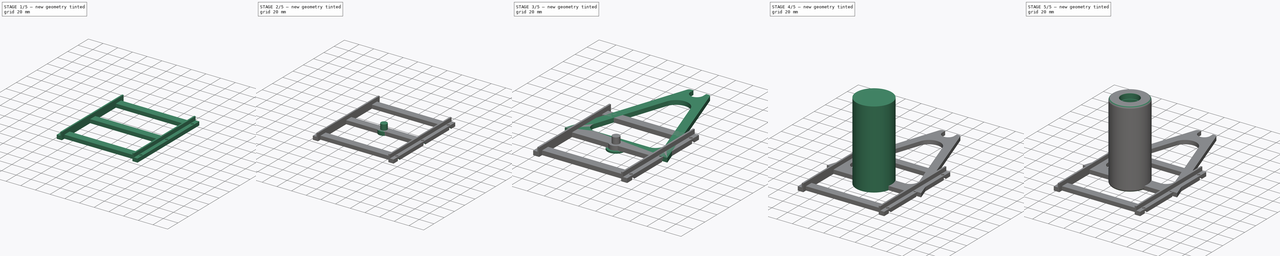
[diagram: build sequence overview — one tinted view per stage of 5, left to right]
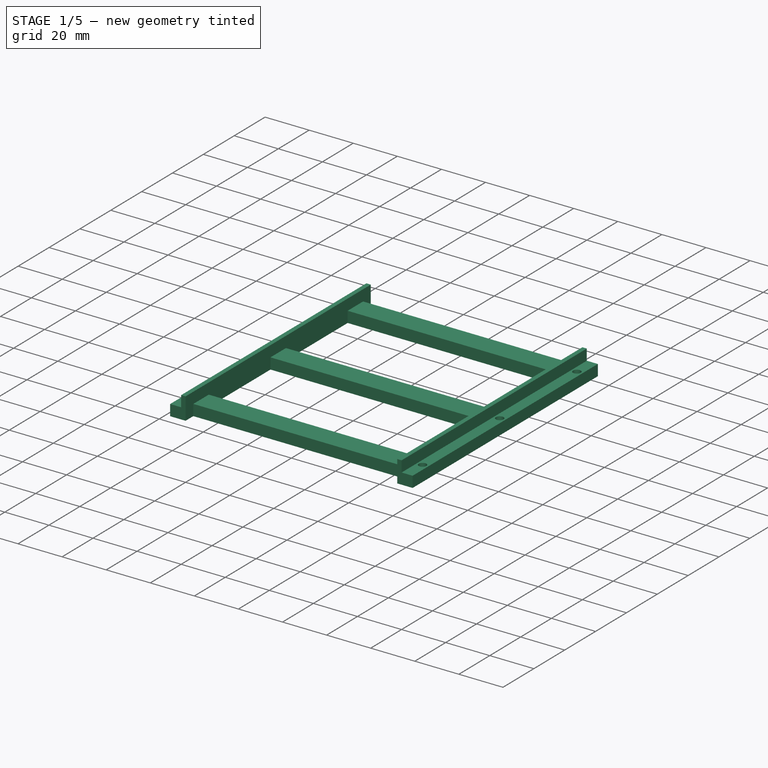
[diagram: stage 1 of 5 — iso view after this stage's code; geometry added in this stage tinted green]
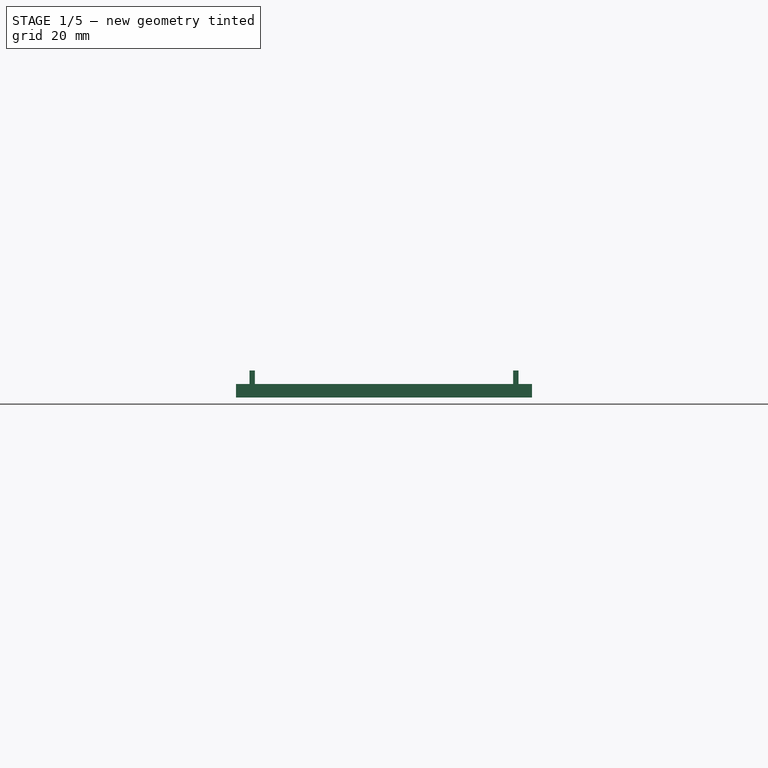
[diagram: stage 1 of 5 — front view after this stage's code; geometry added in this stage tinted green]
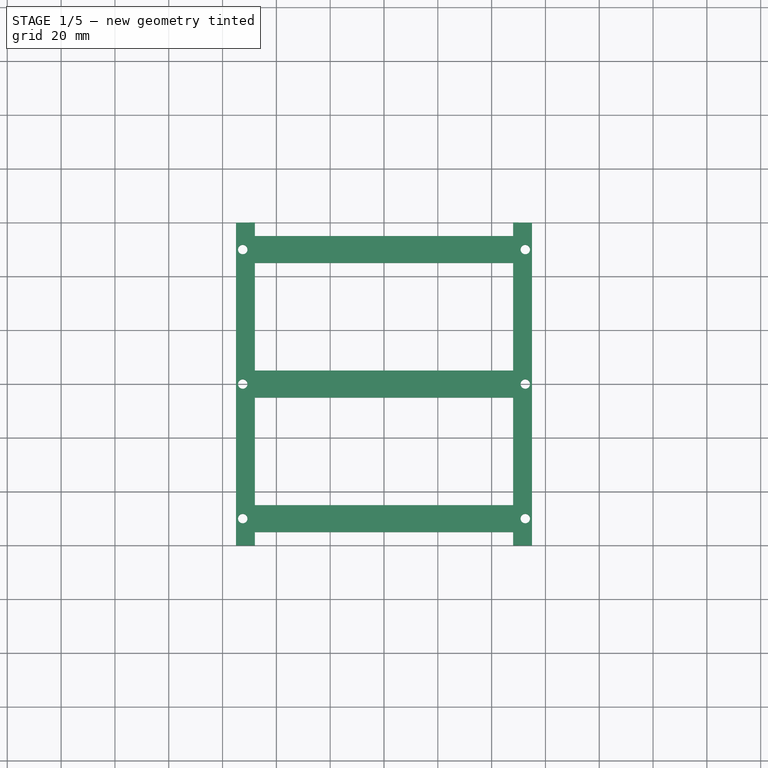
[diagram: stage 1 of 5 — top view after this stage's code; geometry added in this stage tinted green]
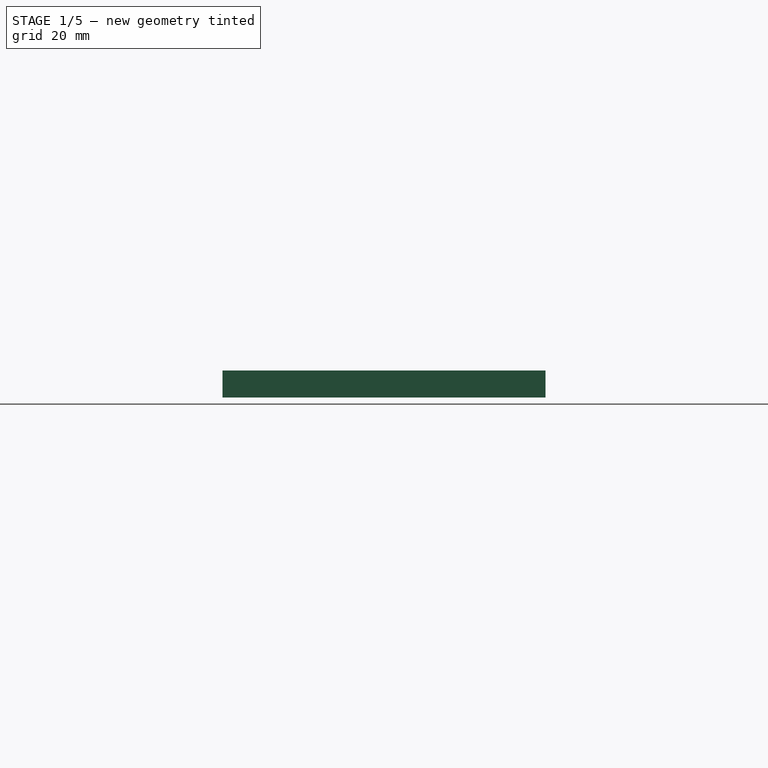
[diagram: stage 1 of 5 — right view after this stage's code; geometry added in this stage tinted green]
FCSTD DOCUMENT  (FreeCAD 0.18R4 (GitTag))
Label: filament-holder
License: All rights reserved
LicenseURL: http://en.wikipedia.org/wiki/All_rights_reserved
objects: Sketcher::SketchObject×15, PartDesign::Pocket×8, PartDesign::Pad×7, PartDesign::Body×4, PartDesign::Fillet×3
note: 52 computed .brp shape members not serialized (recipe doc carries the construction recipe); baked Part::Feature solids carry a one-line shape summary decoded from their .brp

FEATURE [Sketcher::SketchObject] Sketch008
  MapMode = 5
  Support = -> [XY_Plane003]
  sketch-geometry (4):
    g0: LineSegment StartX=-55 StartY=60 StartZ=0 EndX=55 EndY=60 EndZ=0
    g1: LineSegment StartX=55 StartY=60 StartZ=0 EndX=55 EndY=-60 EndZ=0
    g2: LineSegment StartX=55 StartY=-60 StartZ=0 EndX=-55 EndY=-60 EndZ=0
    g3: LineSegment StartX=-55 StartY=-60 StartZ=0 EndX=-55 EndY=60 EndZ=0
  constraints (10):
    c: Coincident(g0,g1)
    c: Coincident(g1,g2)
    c: Coincident(g2,g3)
    c: Coincident(g3,g0)
    c: Horizontal(g2)
    c: Vertical(g1)
    c: Symmetric(g0,g2,g-1)
    c: Symmetric(g0,g0,g-2)
    c: DistanceY(g3,g3) = 120
    c: DistanceX(g0,g0) = 110
FEATURE [PartDesign::Pad] Pad004
  Length = 5
  Length2 = 100
  Profile = -> Sketch008
  Type = 0
FEATURE [PartDesign::Body] Body001
  Group = -> [Sketch002,Pad001,Sketch003,Pad002,Sketch011,Pad006]
  Origin = -> Origin001
  Tip = -> Pad006
FEATURE [PartDesign::Pocket] Pocket006
  BaseFeature = -> Pad004
  Length = 5
  Length2 = 100
  Profile = -> Sketch009
  Type = 1
FEATURE [Sketcher::SketchObject] Sketch012
  ExternalGeometry = -> [Pocket006]
  MapMode = 5
  Placement = pos=(0,0,5) rot=(0,0,1;0rad)
  Support = -> [Pocket006]
  sketch-geometry (16):
    g0: LineSegment StartX=-48 StartY=60 StartZ=0 EndX=48 EndY=60 EndZ=0
    g1: LineSegment StartX=48 StartY=60 StartZ=0 EndX=48 EndY=55 EndZ=0
    g2: LineSegment StartX=48 StartY=55 StartZ=0 EndX=-48 EndY=55 EndZ=0
    g3: LineSegment StartX=-48 StartY=55 StartZ=0 EndX=-48 EndY=60 EndZ=0
    g4: LineSegment StartX=-48 StartY=-55 StartZ=0 EndX=48 EndY=-55 EndZ=0
    g5: LineSegment StartX=48 StartY=-55 StartZ=0 EndX=48 EndY=-60 EndZ=0
    g6: LineSegment StartX=48 StartY=-60 StartZ=0 EndX=-48 EndY=-60 EndZ=0
    g7: LineSegment StartX=-48 StartY=-60 StartZ=0 EndX=-48 EndY=-55 EndZ=0
    g8: LineSegment StartX=-48 StartY=45 StartZ=0 EndX=48 EndY=45 EndZ=0
    g9: LineSegment StartX=48 StartY=45 StartZ=0 EndX=48 EndY=5 EndZ=0
    g10: LineSegment StartX=48 StartY=5 StartZ=0 EndX=-48 EndY=5 EndZ=0
    g11: LineSegment StartX=-48 StartY=5 StartZ=0 EndX=-48 EndY=45 EndZ=0
    g12: LineSegment StartX=-48 StartY=-5 StartZ=0 EndX=48 EndY=-5 EndZ=0
    g13: LineSegment StartX=48 StartY=-5 StartZ=0 EndX=48 EndY=-45 EndZ=0
    g14: LineSegment StartX=48 StartY=-45 StartZ=0 EndX=-48 EndY=-45 EndZ=0
    g15: LineSegment StartX=-48 StartY=-45 StartZ=0 EndX=-48 EndY=-5 EndZ=0
  constraints (47):
    c: Coincident(g0,g1)
    c: Coincident(g1,g2)
    c: Coincident(g2,g3)
    c: Coincident(g3,g0)
    c: Horizontal(g0)
    c: Horizontal(g2)
    c: Vertical(g1)
    c: Vertical(g3)
    c: PointOnObject(g0,g-4)
    c: DistanceX(g-4,g0) = 7
    c: DistanceX(g0,g-5) = 7
    c: DistanceY(g1,g0) = 5
    c: Coincident(g4,g5)
    c: Coincident(g5,g6)
    c: Coincident(g6,g7)
    c: Coincident(g7,g4)
    c: Horizontal(g4)
    c: Horizontal(g6)
    c: Vertical(g5)
    c: Vertical(g7)
    c: PointOnObject(g6,g-6)
    c: DistanceX(g-6,g6) = 7
    c: DistanceX(g5,g-6) = 7
    c: DistanceY(g5,g4) = 5
    c: Coincident(g8,g9)
    c: Coincident(g9,g10)
    c: Coincident(g10,g11)
    c: Coincident(g11,g8)
    c: Horizontal(g8)
    c: Horizontal(g10)
    c: Vertical(g9)
    c: Vertical(g11)
    c: Coincident(g12,g13)
    c: Coincident(g13,g14)
    c: Coincident(g14,g15)
    c: Coincident(g15,g12)
    c: Horizontal(g12)
    c: Horizontal(g14)
    c: Vertical(g13)
    c: Vertical(g15)
    c: DistanceY(g4,g14) = 10
    c: DistanceX(g-6,g12) = 7
    c: DistanceX(g12,g-6) = 7
    c: Symmetric(g10,g12,g-1)
    c: DistanceY(g12,g10) = 10
    c: DistanceX(g8,g-5) = 7
    c: DistanceY(g8,g2) = 10
FEATURE [PartDesign::Pocket] Pocket007
  BaseFeature = -> Pocket006
  Length = 5
  Length2 = 100
  Profile = -> Sketch012
  Type = 1
FEATURE [Sketcher::SketchObject] Sketch014
  ExternalGeometry = -> [Pocket007]
  MapMode = 5
  Placement = pos=(0,0,5) rot=(0,0,1;0rad)
  Support = -> [Pocket007]
  sketch-geometry (8):
    g0: LineSegment StartX=-48 StartY=60 StartZ=0 EndX=-50 EndY=60 EndZ=0
    g1: LineSegment StartX=-50 StartY=60 StartZ=0 EndX=-50 EndY=-60 EndZ=0
    g2: LineSegment StartX=-50 StartY=-60 StartZ=0 EndX=-48 EndY=-60 EndZ=0
    g3: LineSegment StartX=-48 StartY=-60 StartZ=0 EndX=-48 EndY=60 EndZ=0
    g4: LineSegment StartX=48 StartY=60 StartZ=0 EndX=50 EndY=60 EndZ=0
    g5: LineSegment StartX=50 StartY=60 StartZ=0 EndX=50 EndY=-60 EndZ=0
    g6: LineSegment StartX=50 StartY=-60 StartZ=0 EndX=48 EndY=-60 EndZ=0
    g7: LineSegment StartX=48 StartY=-60 StartZ=0 EndX=48 EndY=60 EndZ=0
  constraints (20):
    c: Coincident(g0,g1)
    c: Coincident(g1,g2)
    c: Coincident(g2,g3)
    c: Coincident(g3,g0)
    c: Horizontal(g0)
    c: Horizontal(g2)
    c: Vertical(g1)
    c: Coincident(g4,g5)
    c: Coincident(g5,g6)
    c: Coincident(g6,g7)
    c: Coincident(g7,g4)
    c: Horizontal(g4)
    c: Horizontal(g6)
    c: Vertical(g5)
    c: Coincident(g4,g-3)
    c: Coincident(g6,g-6)
    c: Coincident(g0,g-4)
    c: Coincident(g2,g-5)
    c: DistanceX(g4,g-3) = 5
    c: DistanceX(g-4,g0) = 5
FEATURE [PartDesign::Pad] Pad007
  BaseFeature = -> Pocket007
  Length = 5
  Length2 = 100
  Profile = -> Sketch014
  Type = 0
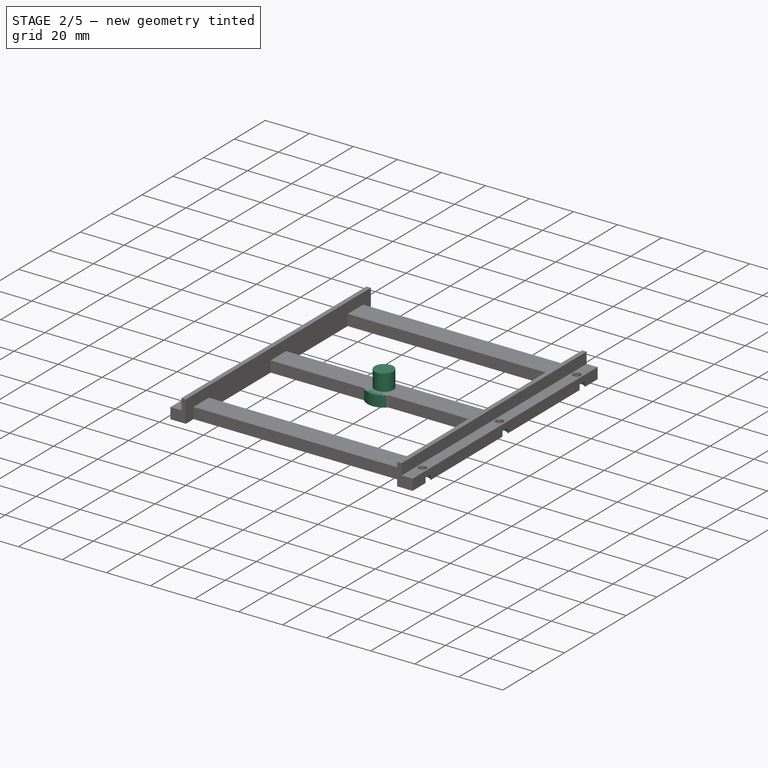
[diagram: stage 2 of 5 — iso view after this stage's code; geometry added in this stage tinted green]
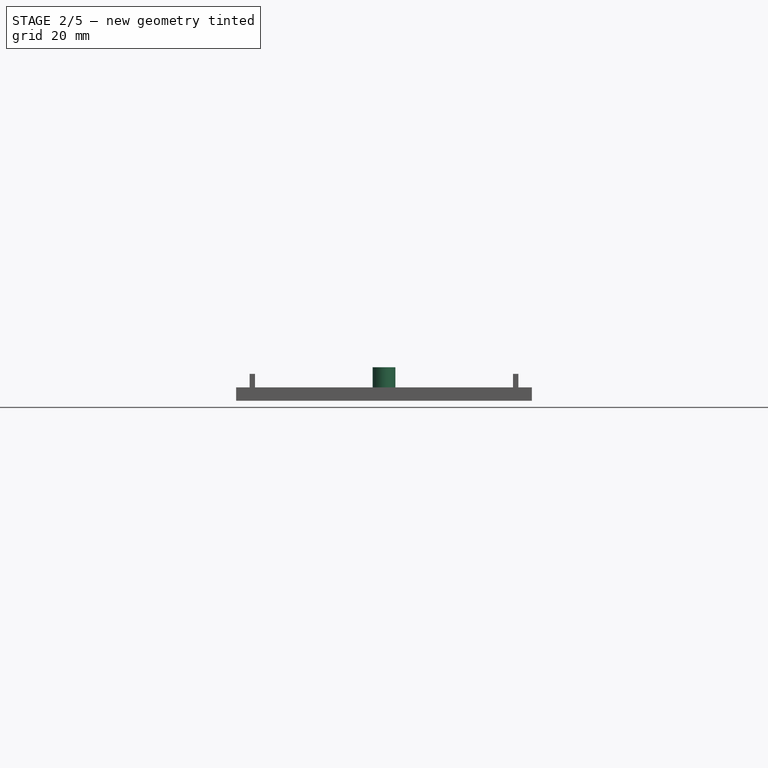
[diagram: stage 2 of 5 — front view after this stage's code; geometry added in this stage tinted green]
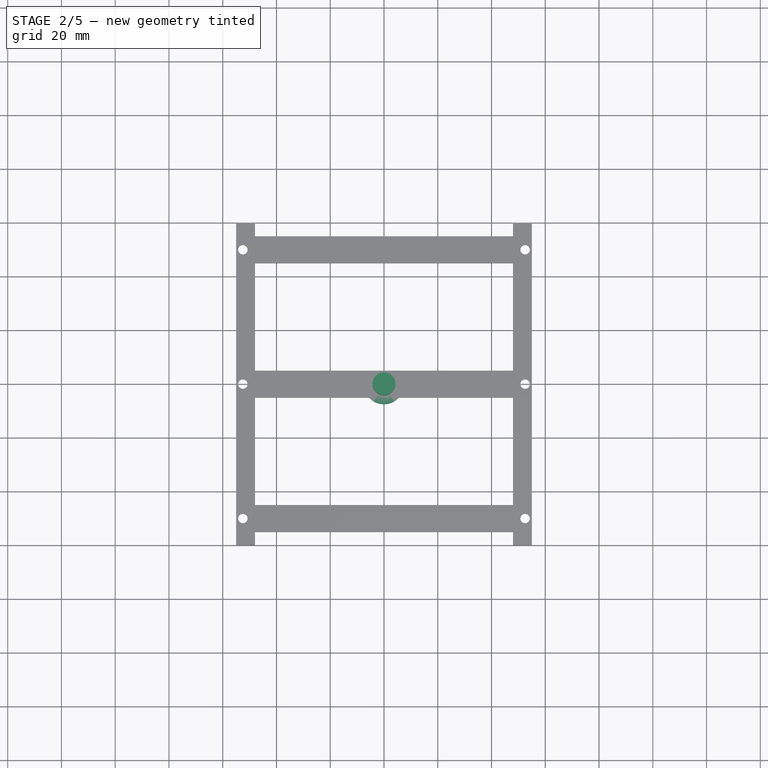
[diagram: stage 2 of 5 — top view after this stage's code; geometry added in this stage tinted green]
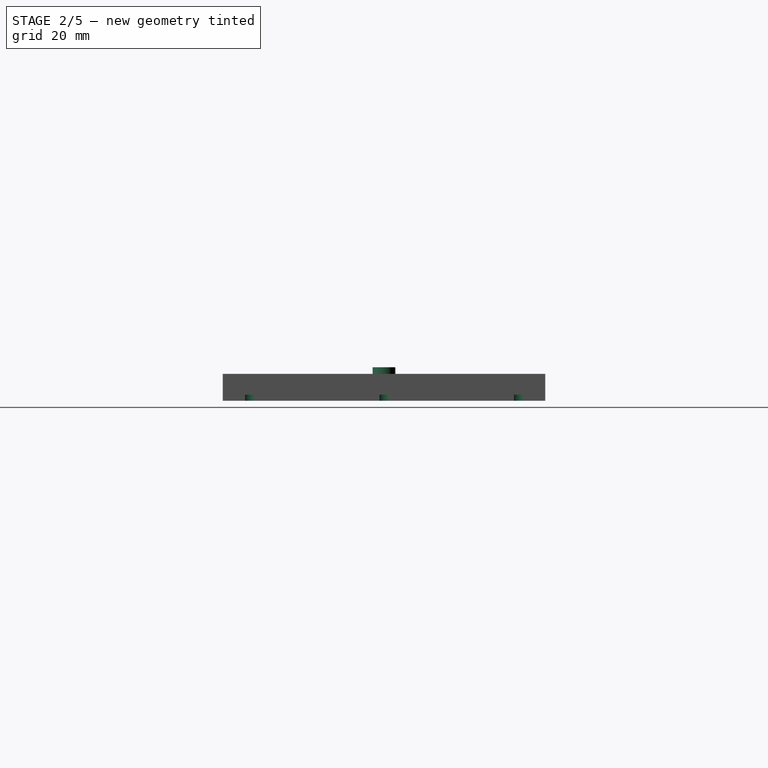
[diagram: stage 2 of 5 — right view after this stage's code; geometry added in this stage tinted green]
FEATURE [Sketcher::SketchObject] Sketch002
  MapMode = 5
  Support = -> [XY_Plane001]
  sketch-geometry (4):
    g0: ArcOfCircle CenterX=0 CenterY=0 CenterZ=0 NormalX=0 NormalY=0 NormalZ=1 AngleXU=0 Radius=7.45 StartAngle=3.14159 EndAngle=6.28319
    g1: LineSegment StartX=-7.45 StartY=9e-16 StartZ=0 EndX=-7.45 EndY=5 EndZ=0
    g2: LineSegment StartX=-7.45 StartY=5 StartZ=0 EndX=7.45 EndY=5 EndZ=0
    g3: LineSegment StartX=7.45 StartY=5 StartZ=0 EndX=7.45 EndY=0 EndZ=0
  constraints (12):
    c: Coincident(g1,g2)
    c: Coincident(g2,g3)
    c: Coincident(g3,g0)
    c: Coincident(g1,g0)
    c: Vertical(g1)
    c: Vertical(g3)
    c: Horizontal(g2)
    c: Coincident(g0,g-1)
    c: PointOnObject(g0,g-1)
    c: PointOnObject(g0,g-1)
    c: Diameter(g0) = 14.9
    c: DistanceY(g3,g3) = 5
FEATURE [PartDesign::Pad] Pad001
  Length = 5
  Length2 = 100
  Profile = -> Sketch002
  Type = 0
FEATURE [Sketcher::SketchObject] Sketch003
  MapMode = 5
  Placement = pos=(0,0,5) rot=(0,0,1;0rad)
  Support = -> [Pad001]
  sketch-geometry (1):
    g0: Circle CenterX=0 CenterY=0 CenterZ=0 NormalX=0 NormalY=0 NormalZ=1 AngleXU=0 Radius=4.25
  constraints (2):
    c: Diameter(g0) = 8.5
    c: Coincident(g0,g-1)
FEATURE [PartDesign::Pad] Pad002
  BaseFeature = -> Pad001
  Length = 7.5
  Length2 = 100
  Profile = -> Sketch003
  Type = 0
FEATURE [Sketcher::SketchObject] Sketch015
  ExternalGeometry = -> [Pad007]
  MapMode = 5
  Placement = pos=(0,0,0) rot=(1,0,0;3.14159rad)
  Support = -> [Pad007]
  sketch-geometry (6):
    g0: Circle CenterX=-52.5 CenterY=50 CenterZ=0 NormalX=0 NormalY=0 NormalZ=1 AngleXU=0 Radius=3
    g1: Circle CenterX=-52.5 CenterY=0 CenterZ=0 NormalX=0 NormalY=0 NormalZ=1 AngleXU=0 Radius=3
    g2: Circle CenterX=-52.5 CenterY=-50 CenterZ=0 NormalX=0 NormalY=0 NormalZ=1 AngleXU=0 Radius=3
    g3: Circle CenterX=52.5 CenterY=-50 CenterZ=0 NormalX=0 NormalY=0 NormalZ=1 AngleXU=0 Radius=3
    g4: Circle CenterX=52.5 CenterY=0 CenterZ=0 NormalX=0 NormalY=0 NormalZ=1 AngleXU=0 Radius=3
    g5: Circle CenterX=52.5 CenterY=50 CenterZ=0 NormalX=0 NormalY=0 NormalZ=1 AngleXU=0 Radius=3
  constraints (12):
    c: Coincident(g-3,g0)
    c: Coincident(g1,g-4)
    c: Coincident(g2,g-5)
    c: Coincident(g-6,g3)
    c: Coincident(g-7,g4)
    c: Coincident(g-8,g5)
    c: Diameter(g0) = 6
    c: Diameter(g1) = 6
    c: Diameter(g2) = 6
    c: Diameter(g5) = 6
    c: Diameter(g4) = 6
    c: Diameter(g3) = 6
FEATURE [PartDesign::Pocket] Pocket008
  BaseFeature = -> Pad007
  Length = 2.3
  Length2 = 100
  Profile = -> Sketch015
  Type = 0
FEATURE [PartDesign::Body] Body003
  Group = -> [Sketch008,Pad004,Sketch009,Pocket006,Sketch012,Pocket007,Sketch014,Pad007,Sketch015,Pocket008]
  Origin = -> Origin003
  Tip = -> Pocket008
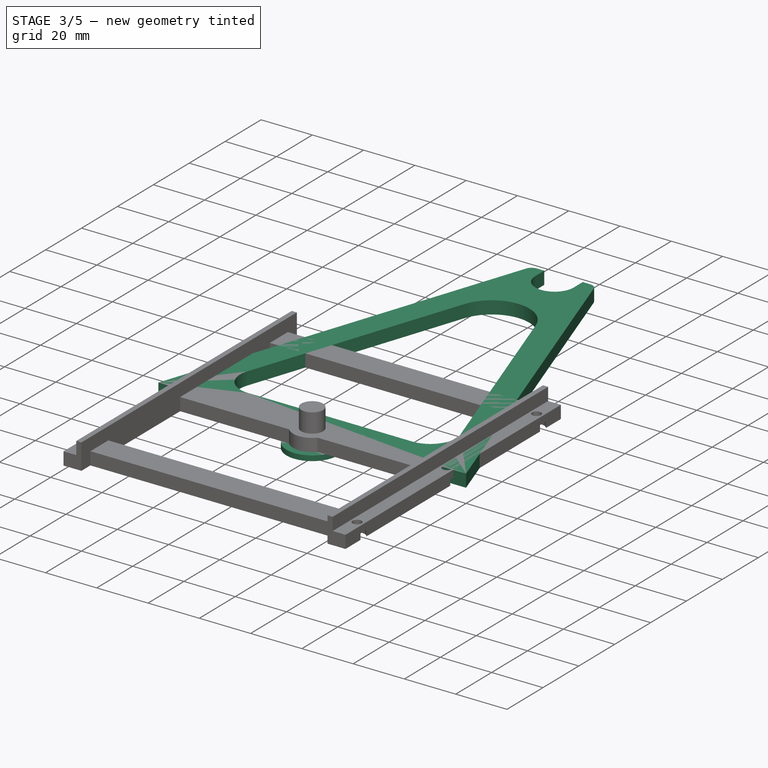
[diagram: stage 3 of 5 — iso view after this stage's code; geometry added in this stage tinted green]
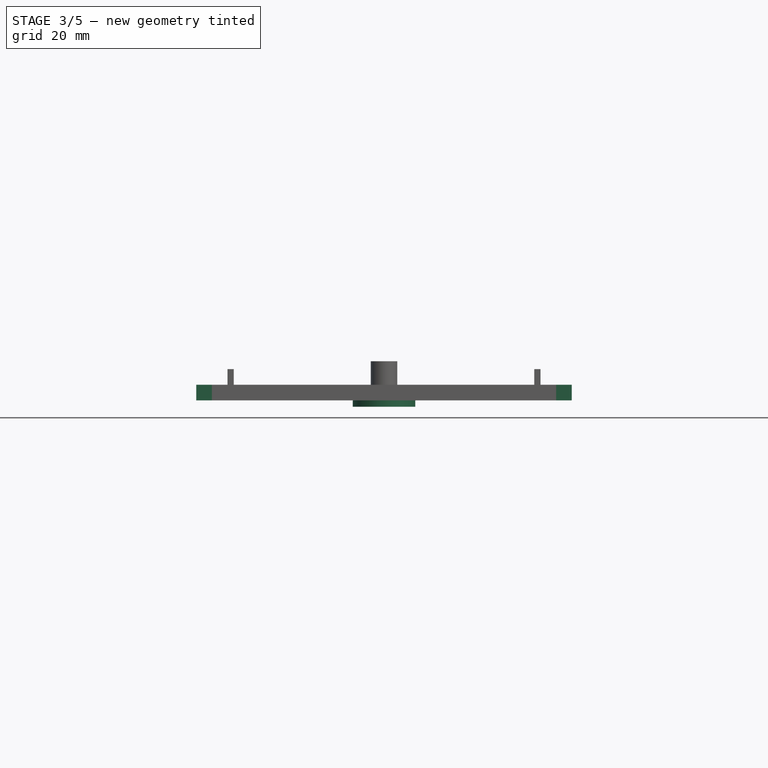
[diagram: stage 3 of 5 — front view after this stage's code; geometry added in this stage tinted green]
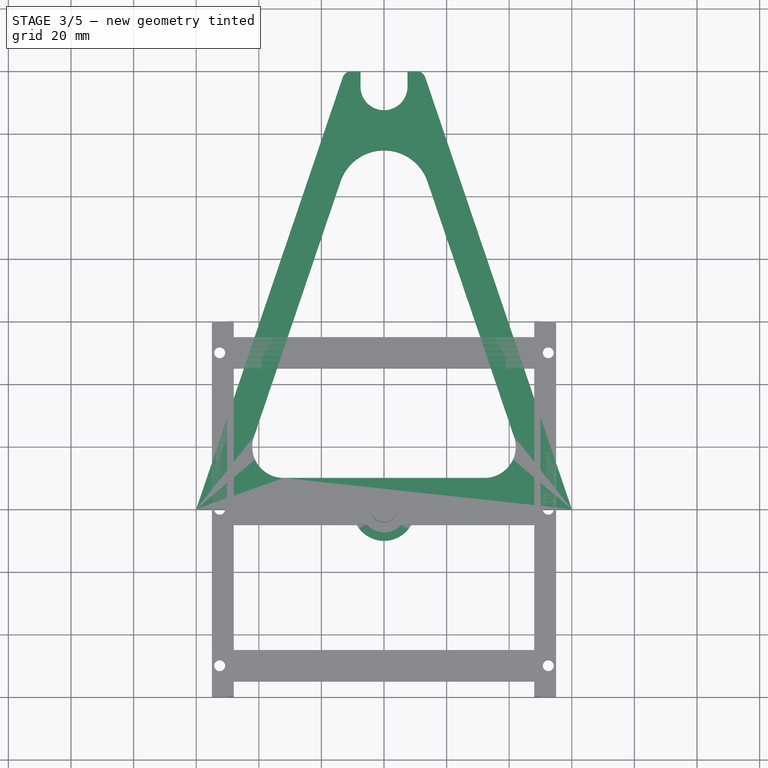
[diagram: stage 3 of 5 — top view after this stage's code; geometry added in this stage tinted green]
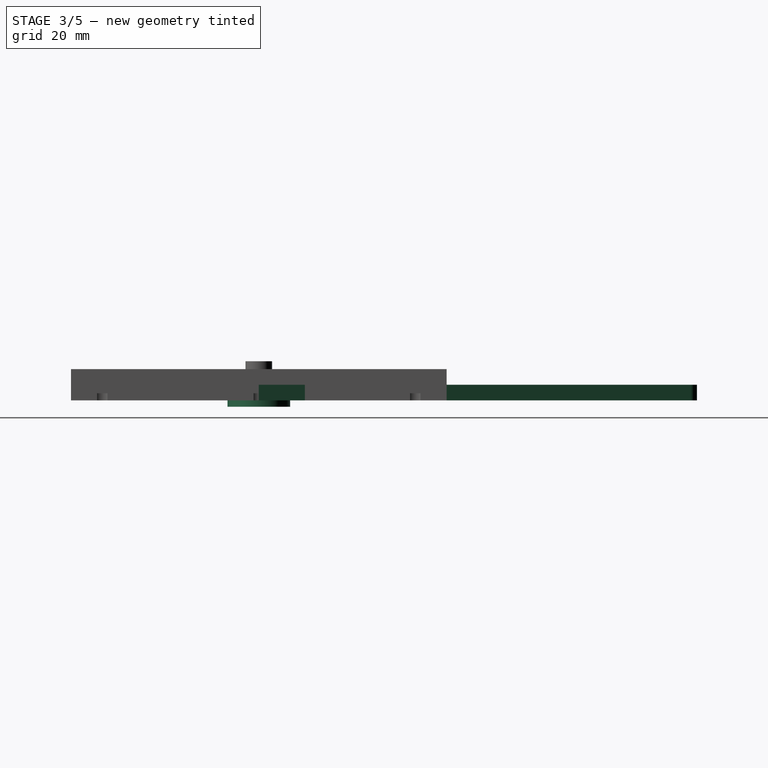
[diagram: stage 3 of 5 — right view after this stage's code; geometry added in this stage tinted green]
FEATURE [Sketcher::SketchObject] Sketch
  MapMode = 5
  Support = -> [XY_Plane]
  sketch-geometry (8):
    g0: ArcOfCircle CenterX=0 CenterY=135 CenterZ=0 NormalX=0 NormalY=0 NormalZ=1 AngleXU=0 Radius=7.5 StartAngle=3.14159 EndAngle=6.28319
    g1: LineSegment StartX=-7.5 StartY=135 StartZ=0 EndX=-7.5 EndY=140 EndZ=0
    g2: LineSegment StartX=-7.5 StartY=140 StartZ=0 EndX=-12.5 EndY=140 EndZ=0
    g3: LineSegment StartX=-12.5 StartY=140 StartZ=0 EndX=-60 EndY=0 EndZ=0
    g4: LineSegment StartX=-60 StartY=0 StartZ=0 EndX=60 EndY=0 EndZ=0
    g5: LineSegment StartX=60 StartY=0 StartZ=0 EndX=12.5 EndY=140 EndZ=0
    g6: LineSegment StartX=12.5 StartY=140 StartZ=0 EndX=7.5 EndY=140 EndZ=0
    g7: LineSegment StartX=7.5 StartY=140 StartZ=0 EndX=7.5 EndY=135 EndZ=0
  constraints (23):
    c: Coincident(g1,g2)
    c: Coincident(g2,g3)
    c: Coincident(g3,g4)
    c: Coincident(g4,g5)
    c: Coincident(g5,g6)
    c: Coincident(g6,g7)
    c: Coincident(g1,g0)
    c: Coincident(g0,g7)
    c: Symmetric(g3,g4,g-1)
    c: Horizontal(g4)
    c: Vertical(g1)
    c: Vertical(g7)
    c: DistanceX(g4,g4) = 120
    c: PointOnObject(g0,g-2)
    c: Horizontal(g0,g0)
    c: Horizontal(g0,g0)
    c: Horizontal(g6)
    c: Horizontal(g2)
    c: DistanceY(g3,g3) = 140
    c: Symmetric(g2,g5,g-2)
    c: DistanceX(g2,g2) = 5
    c: DistanceY(g7,g7) = 5
    c: Diameter(g0) = 15
FEATURE [PartDesign::Pad] Pad
  Length = 5
  Length2 = 100
  Profile = -> Sketch
  Type = 0
FEATURE [Sketcher::SketchObject] Sketch001
  ExternalGeometry = -> [Pad]
  MapMode = 5
  Placement = pos=(0,0,5) rot=(0,0,1;0rad)
  Support = -> [Pad]
  sketch-geometry (6):
    g0: ArcOfCircle CenterX=-32.0945 CenterY=20 CenterZ=0 NormalX=0 NormalY=0 NormalZ=1 AngleXU=0 Radius=10 StartAngle=2.81449 EndAngle=4.71239
    g1: ArcOfCircle CenterX=32.0945 CenterY=20 CenterZ=0 NormalX=0 NormalY=0 NormalZ=1 AngleXU=0 Radius=10 StartAngle=4.71239 EndAngle=6.61028
    g2: LineSegment StartX=-13.9103 StartY=104.72 StartZ=0 EndX=-41.5643 EndY=23.213 EndZ=0
    g3: LineSegment StartX=-32.0945 StartY=10 StartZ=0 EndX=32.0945 EndY=10 EndZ=0
    g4: LineSegment StartX=41.5643 StartY=23.213 StartZ=0 EndX=13.9103 EndY=104.72 EndZ=0
    g5: ArcOfCircle CenterX=0 CenterY=100 CenterZ=0 NormalX=0 NormalY=0 NormalZ=1 AngleXU=0 Radius=14.6891 StartAngle=0.327098 EndAngle=2.81449
  constraints (14):
    c: Tangent(g2,g0) = -1.5708
    c: Tangent(g0,g3) = -1.5708
    c: Tangent(g3,g1) = -1.5708
    c: Tangent(g1,g4) = -1.5708
    c: Parallel(g2,g-3)
    c: Parallel(g4,g-4)
    c: Symmetric(g1,g0,g-2)
    c: Distance(g-1,g3) = 10
    c: PointOnObject(g5,g-2)
    c: Tangent(g5,g4) = -1.5708
    c: Tangent(g5,g2) = -1.5708
    c: Distance(g1,g-4) = 10
    c: Radius(g0) = 10
    c: Distance(g-1,g5) = 100
FEATURE [PartDesign::Pocket] Pocket
  BaseFeature = -> Pad
  Length = 5
  Length2 = 100
  Profile = -> Sketch001
  Type = 1
FEATURE [PartDesign::Body] Body002
  Group = -> [Sketch004,Pad003,Sketch005,Pocket001,Sketch006,Pocket002,Sketch007,Pocket003,Fillet002,Fillet003]
  Origin = -> Origin002
  Tip = -> Fillet003
FEATURE [PartDesign::Fillet] Fillet
  Base = -> Pocket [Edge34,Edge33]
  BaseFeature = -> Pocket
  Radius = 3
FEATURE [PartDesign::Body] Body
  Group = -> [Sketch,Pad,Sketch001,Pocket,Fillet,Sketch010,Pocket005]
  Origin = -> Origin
  Tip = -> Pocket005
FEATURE [Sketcher::SketchObject] Sketch011
  MapMode = 5
  Placement = pos=(0,0,0) rot=(1,0,0;3.14159rad)
  Support = -> [Pad002]
  sketch-geometry (1):
    g0: Circle CenterX=0 CenterY=0 CenterZ=0 NormalX=0 NormalY=0 NormalZ=1 AngleXU=0 Radius=10
  constraints (2):
    c: Coincident(g0,g-1)
    c: Diameter(g0) = 20
FEATURE [PartDesign::Pad] Pad006
  BaseFeature = -> Pad002
  Length = 2
  Length2 = 100
  Profile = -> Sketch011
  Type = 0
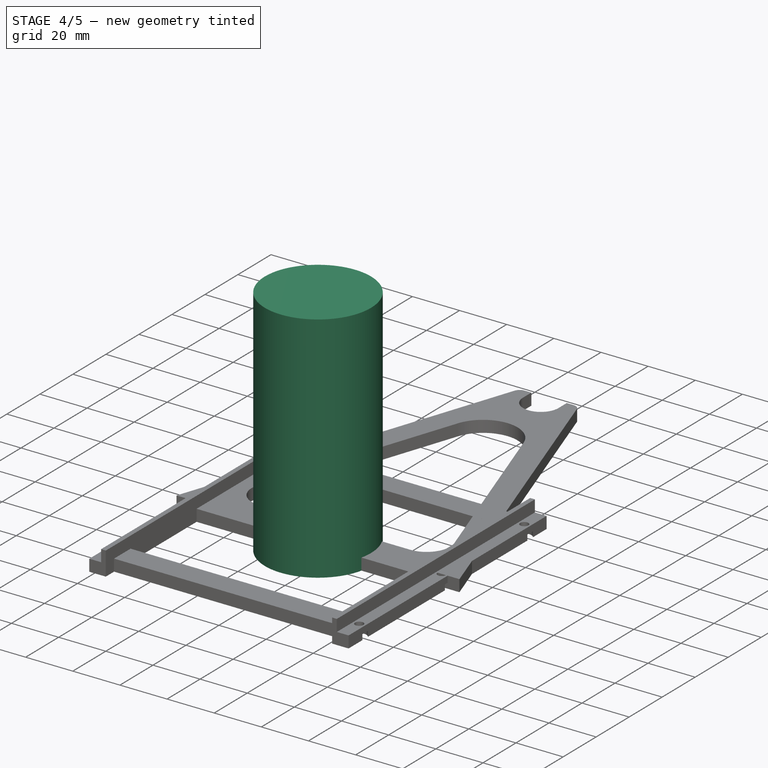
[diagram: stage 4 of 5 — iso view after this stage's code; geometry added in this stage tinted green]
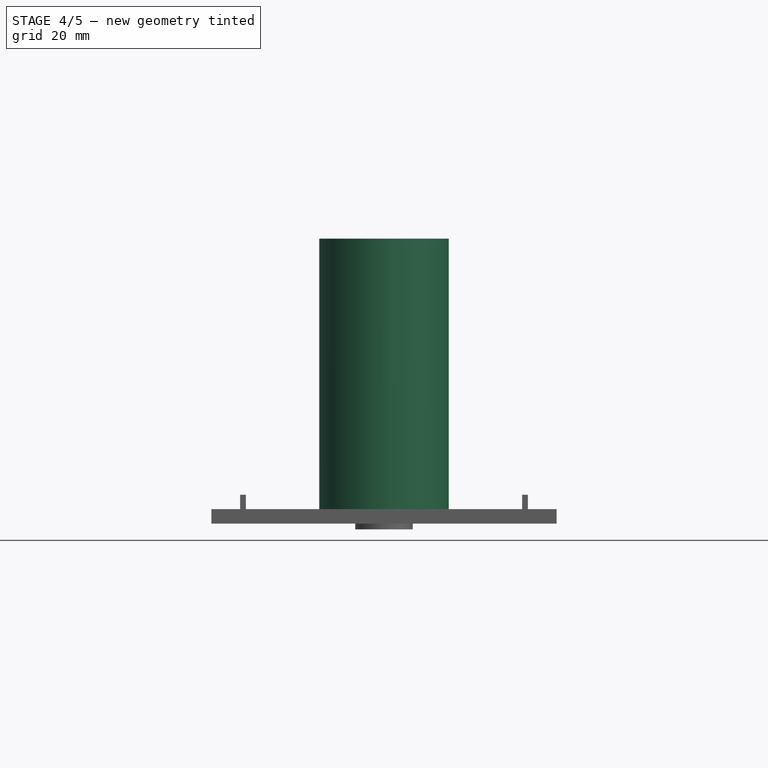
[diagram: stage 4 of 5 — front view after this stage's code; geometry added in this stage tinted green]
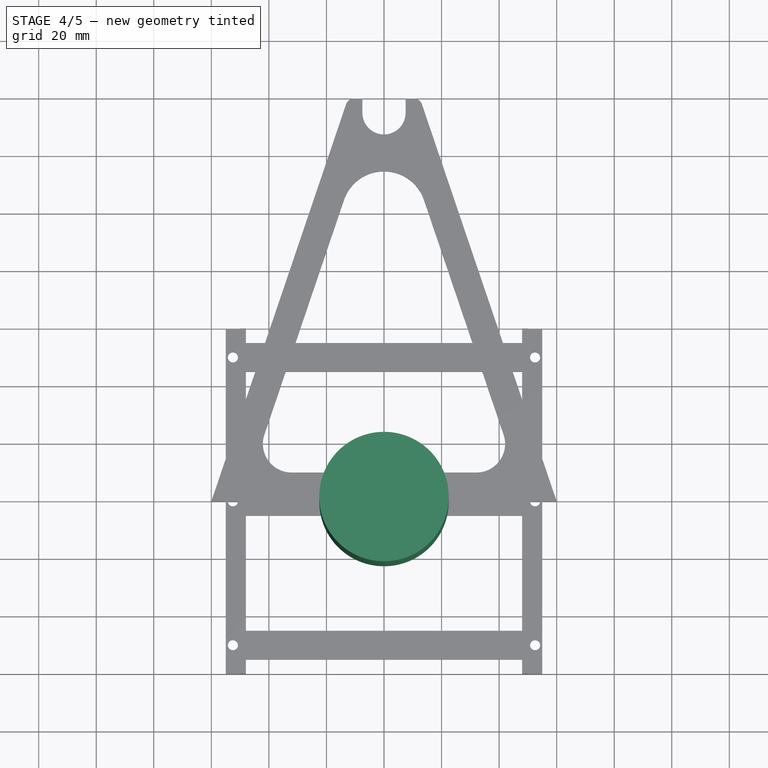
[diagram: stage 4 of 5 — top view after this stage's code; geometry added in this stage tinted green]
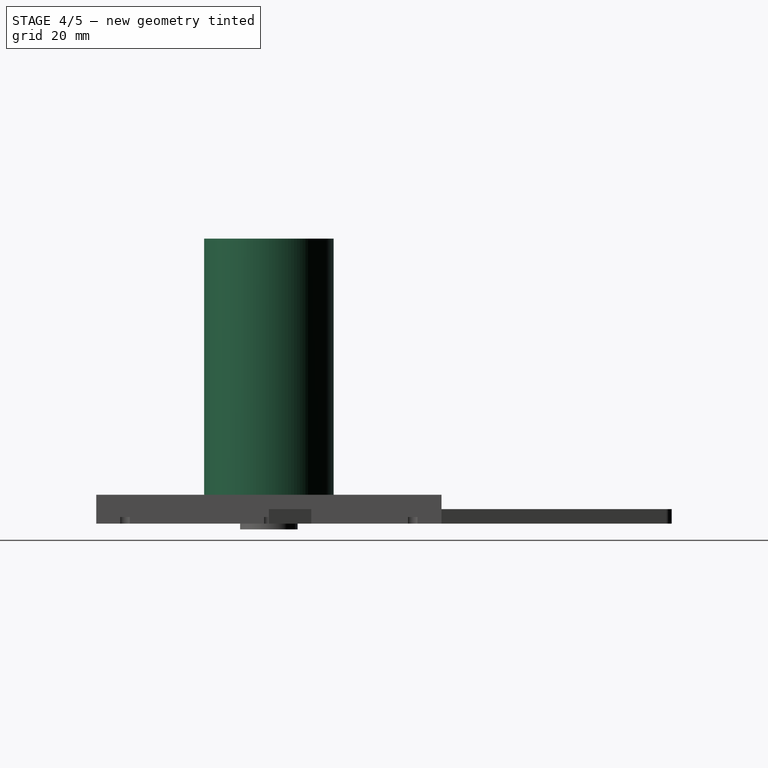
[diagram: stage 4 of 5 — right view after this stage's code; geometry added in this stage tinted green]
FEATURE [Sketcher::SketchObject] Sketch004
  MapMode = 5
  Support = -> [XY_Plane002]
  sketch-geometry (1):
    g0: Circle CenterX=0 CenterY=0 CenterZ=0 NormalX=0 NormalY=0 NormalZ=1 AngleXU=0 Radius=22.5
  constraints (2):
    c: Coincident(g-1,g0)
    c: Diameter(g0) = 45
FEATURE [PartDesign::Pad] Pad003
  Length = 99
  Length2 = 100
  Profile = -> Sketch004
  Type = 0
FEATURE [Sketcher::SketchObject] Sketch005
  MapMode = 5
  Placement = pos=(0,0,0) rot=(1,0,0;3.14159rad)
  Support = -> [Pad003]
  sketch-geometry (1):
    g0: Circle CenterX=0 CenterY=0 CenterZ=0 NormalX=0 NormalY=0 NormalZ=1 AngleXU=0 Radius=11.225
  constraints (2):
    c: Coincident(g0,g-1)
    c: Diameter(g0) = 22.45
FEATURE [PartDesign::Pocket] Pocket001
  BaseFeature = -> Pad003
  Length = 7
  Length2 = 100
  Profile = -> Sketch005
  Type = 0
FEATURE [Sketcher::SketchObject] Sketch009
  ExternalGeometry = -> [Pad004]
  MapMode = 5
  Placement = pos=(0,0,5) rot=(0,0,1;0rad)
  Support = -> [Pad004]
  sketch-geometry (6):
    g0: Circle CenterX=-52.5 CenterY=50 CenterZ=0 NormalX=0 NormalY=0 NormalZ=1 AngleXU=0 Radius=1.75
    g1: Circle CenterX=-52.5 CenterY=0 CenterZ=0 NormalX=0 NormalY=0 NormalZ=1 AngleXU=0 Radius=1.75
    g2: Circle CenterX=-52.5 CenterY=-50 CenterZ=0 NormalX=0 NormalY=0 NormalZ=1 AngleXU=0 Radius=1.75
    g3: Circle CenterX=52.5 CenterY=-50 CenterZ=0 NormalX=0 NormalY=0 NormalZ=1 AngleXU=0 Radius=1.75
    g4: Circle CenterX=52.5 CenterY=0 CenterZ=0 NormalX=0 NormalY=0 NormalZ=1 AngleXU=0 Radius=1.75
    g5: Circle CenterX=52.5 CenterY=50 CenterZ=0 NormalX=0 NormalY=0 NormalZ=1 AngleXU=0 Radius=1.75
  constraints (16):
    c: Vertical(g0,g1)
    c: PointOnObject(g1,g-1)
    c: Symmetric(g0,g2,g1)
    c: PointOnObject(g4,g-1)
    c: Symmetric(g5,g3,g4)
    c: Vertical(g5,g4)
    c: Diameter(g0) = 3.5
    c: Diameter(g1) = 3.5
    c: Diameter(g2) = 3.5
    c: Diameter(g5) = 3.5
    c: Diameter(g4) = 3.5
    c: Diameter(g3) = 3.5
    c: DistanceY(g1,g0) = 50
    c: DistanceY(g4,g5) = 50
    c: Distance(g1,g-3) = 2.5
    c: Distance(g4,g-4) = 2.5
FEATURE [Sketcher::SketchObject] Sketch010
  MapMode = 5
  Placement = pos=(0,0,0) rot=(1,0,0;1.5708rad)
  Support = -> [Fillet]
  sketch-geometry (3):
    g0: Circle CenterX=-50 CenterY=2.5 CenterZ=0 NormalX=0 NormalY=0 NormalZ=1 AngleXU=0 Radius=1.25
    g1: Circle CenterX=0 CenterY=2.5 CenterZ=0 NormalX=0 NormalY=0 NormalZ=1 AngleXU=0 Radius=1.25
    g2: Circle CenterX=50 CenterY=2.5 CenterZ=0 NormalX=0 NormalY=0 NormalZ=1 AngleXU=0 Radius=1.25
  constraints (8):
    c: PointOnObject(g1,g-2)
    c: DistanceY(g-1,g1) = 2.5
    c: Symmetric(g0,g2,g1)
    c: DistanceX(g0,g1) = 50
    c: Diameter(g0) = 2.5
    c: Diameter(g1) = 2.5
    c: Diameter(g2) = 2.5
    c: Horizontal(g0,g2)
FEATURE [PartDesign::Pocket] Pocket005
  BaseFeature = -> Fillet
  Length = 9.8
  Length2 = 100
  Profile = -> Sketch010
  Type = 0
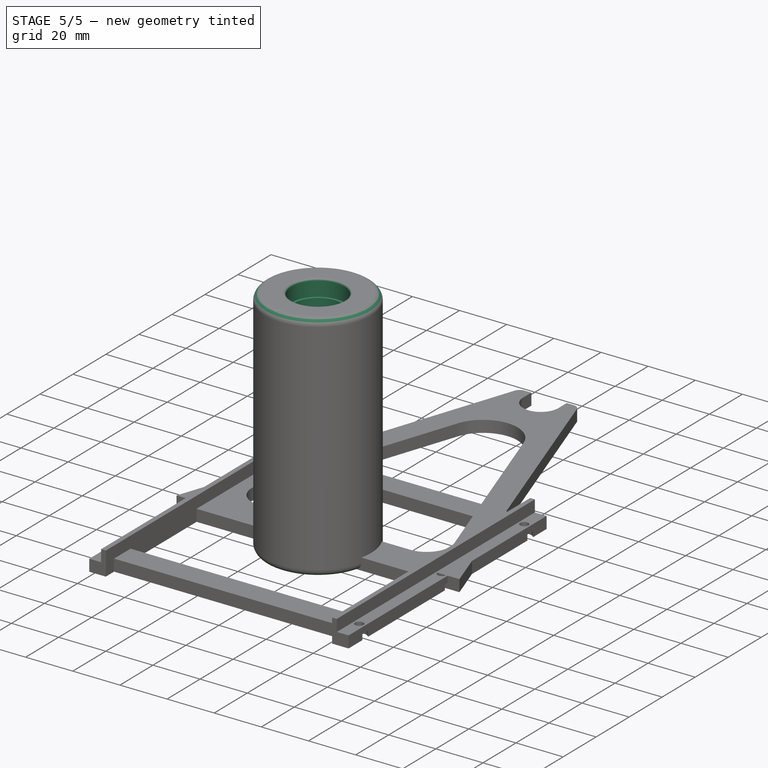
[diagram: stage 5 of 5 — iso view after this stage's code; geometry added in this stage tinted green]
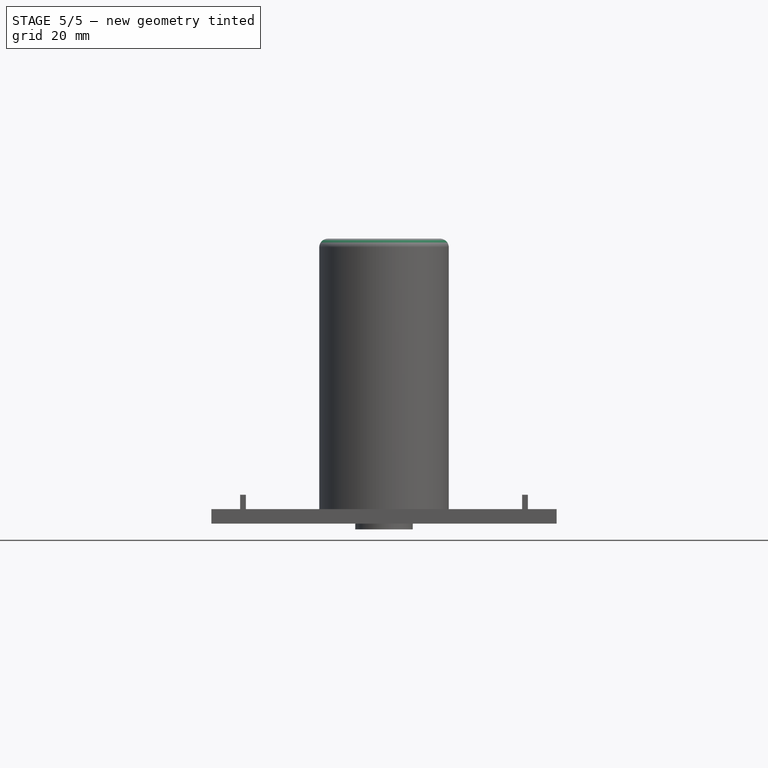
[diagram: stage 5 of 5 — front view after this stage's code; geometry added in this stage tinted green]
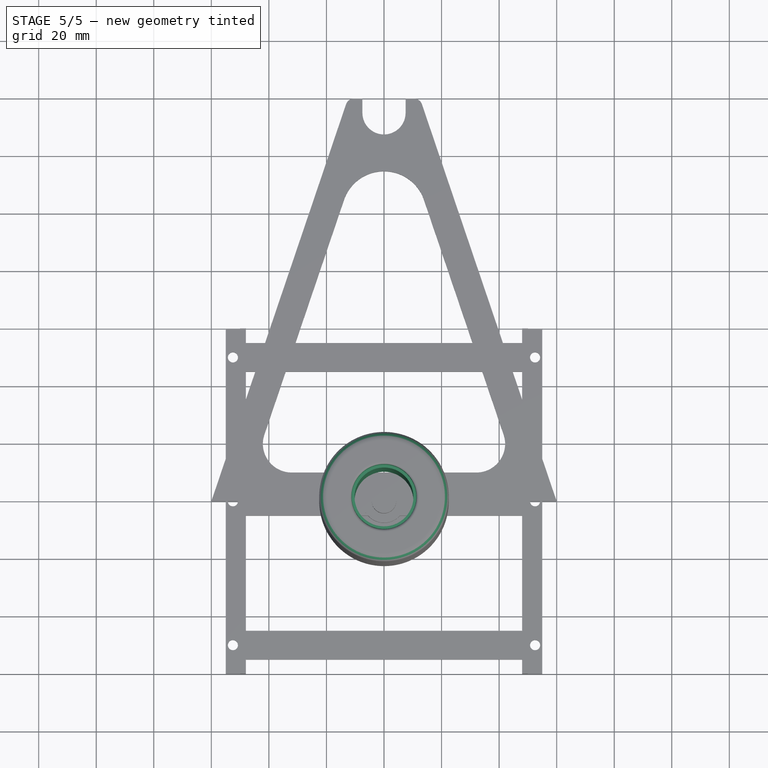
[diagram: stage 5 of 5 — top view after this stage's code; geometry added in this stage tinted green]
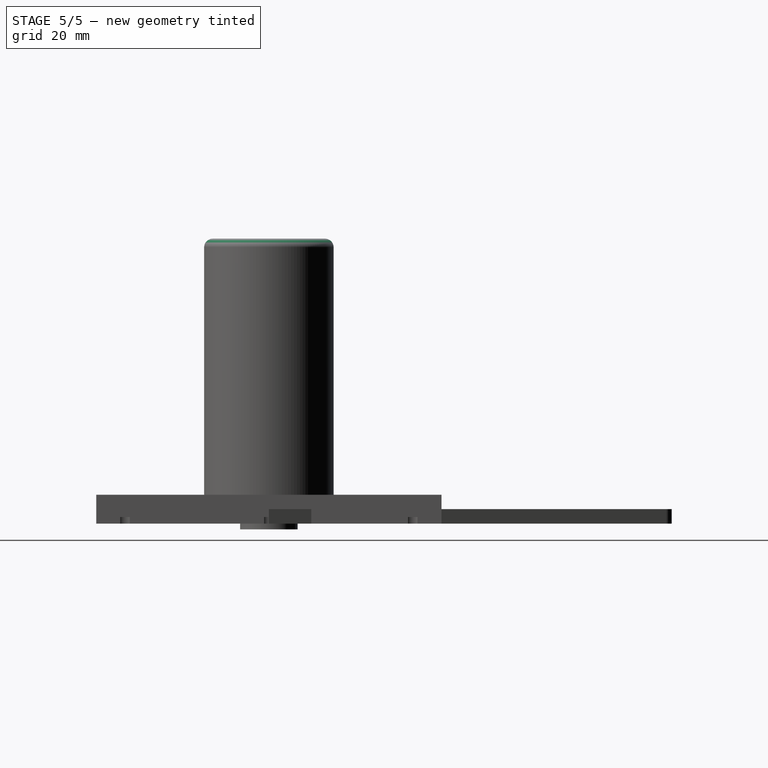
[diagram: stage 5 of 5 — right view after this stage's code; geometry added in this stage tinted green]
FEATURE [Sketcher::SketchObject] Sketch006
  MapMode = 5
  Placement = pos=(0,0,99) rot=(0,0,1;0rad)
  Support = -> [Pocket001]
  sketch-geometry (1):
    g0: Circle CenterX=0 CenterY=0 CenterZ=0 NormalX=0 NormalY=0 NormalZ=1 AngleXU=0 Radius=11.225
  constraints (2):
    c: Coincident(g0,g-1)
    c: Diameter(g0) = 22.45
FEATURE [PartDesign::Pocket] Pocket002
  BaseFeature = -> Pocket001
  Length = 7
  Length2 = 100
  Profile = -> Sketch006
  Type = 0
FEATURE [Sketcher::SketchObject] Sketch007
  MapMode = 5
  Placement = pos=(0,0,92) rot=(0,0,1;0rad)
  Support = -> [Pocket002]
  sketch-geometry (1):
    g0: Circle CenterX=0 CenterY=0 CenterZ=0 NormalX=0 NormalY=0 NormalZ=1 AngleXU=0 Radius=10.225
  constraints (2):
    c: Coincident(g0,g-1)
    c: Diameter(g0) = 20.45
FEATURE [PartDesign::Pocket] Pocket003
  BaseFeature = -> Pocket002
  Length = 5
  Length2 = 100
  Profile = -> Sketch007
  Type = 1
FEATURE [PartDesign::Fillet] Fillet002
  Base = -> Pocket003 [Edge4,Edge5]
  BaseFeature = -> Pocket003
  Radius = 1
FEATURE [PartDesign::Fillet] Fillet003
  Base = -> Fillet002 [Edge6,Edge2]
  BaseFeature = -> Fillet002
  Radius = 3
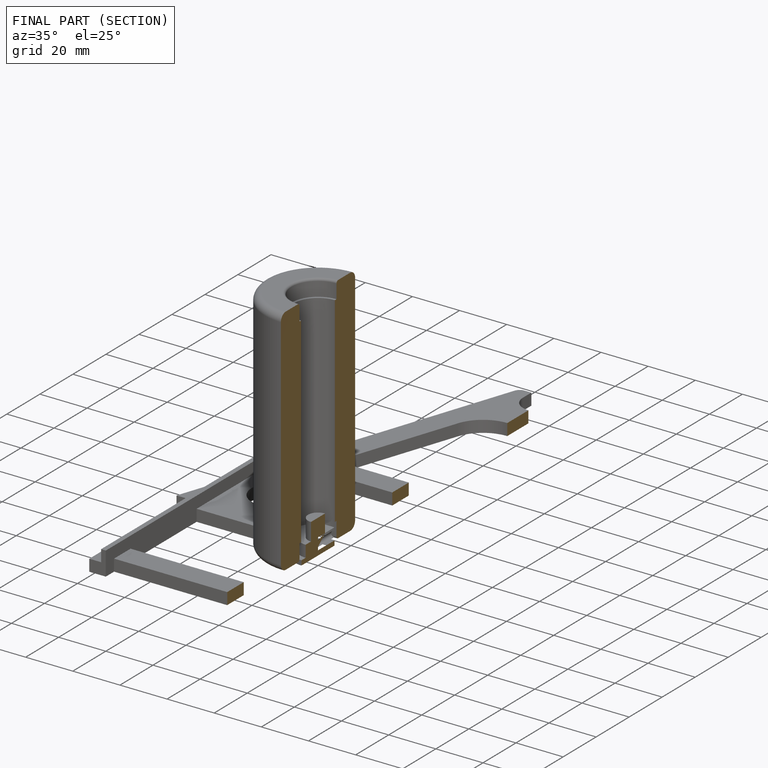
[diagram: finished part — half-section view (interior)]
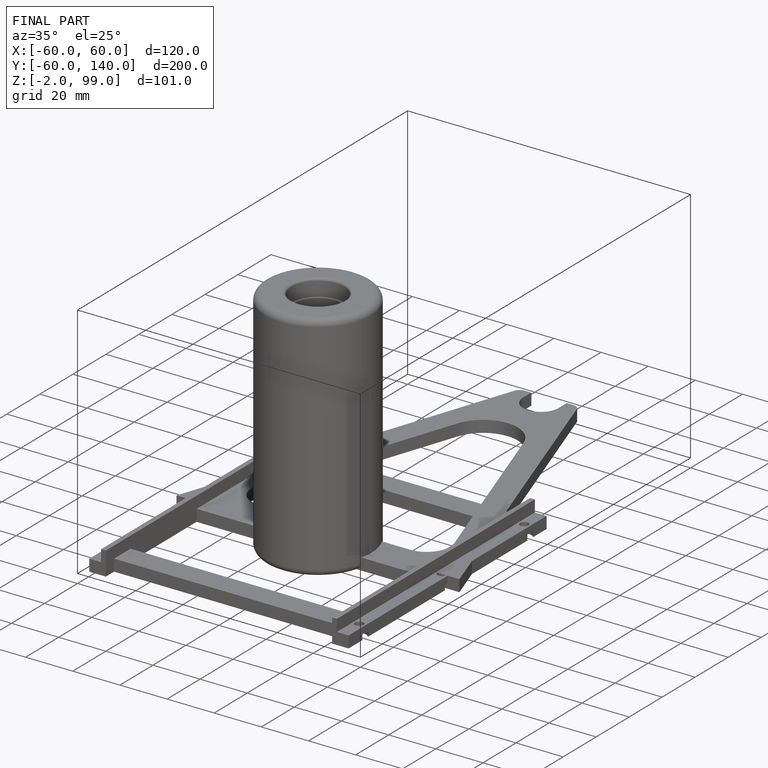
[diagram: finished part — iso view with bounding-box wireframe]
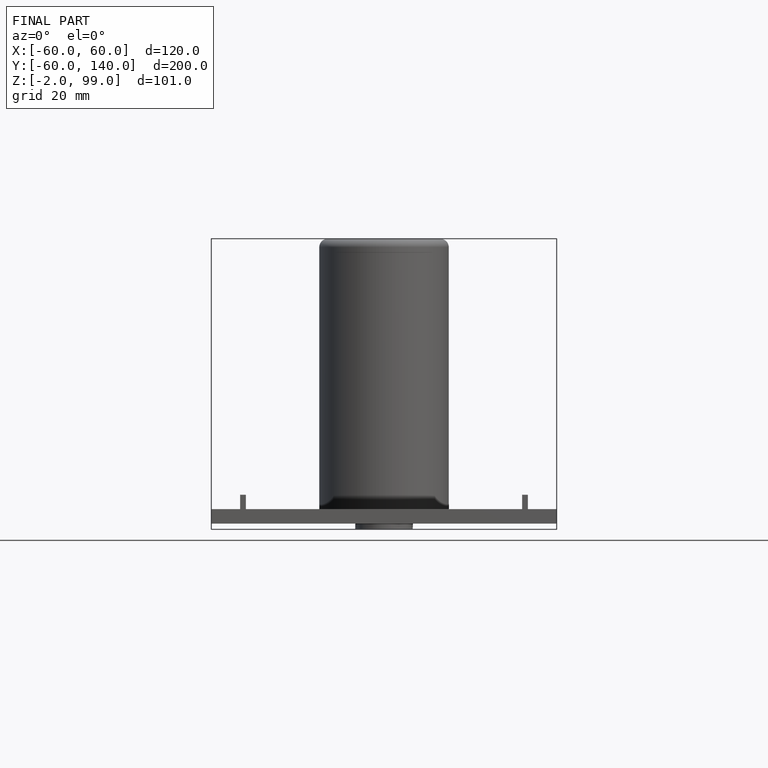
[diagram: finished part — front view with bounding-box wireframe]
